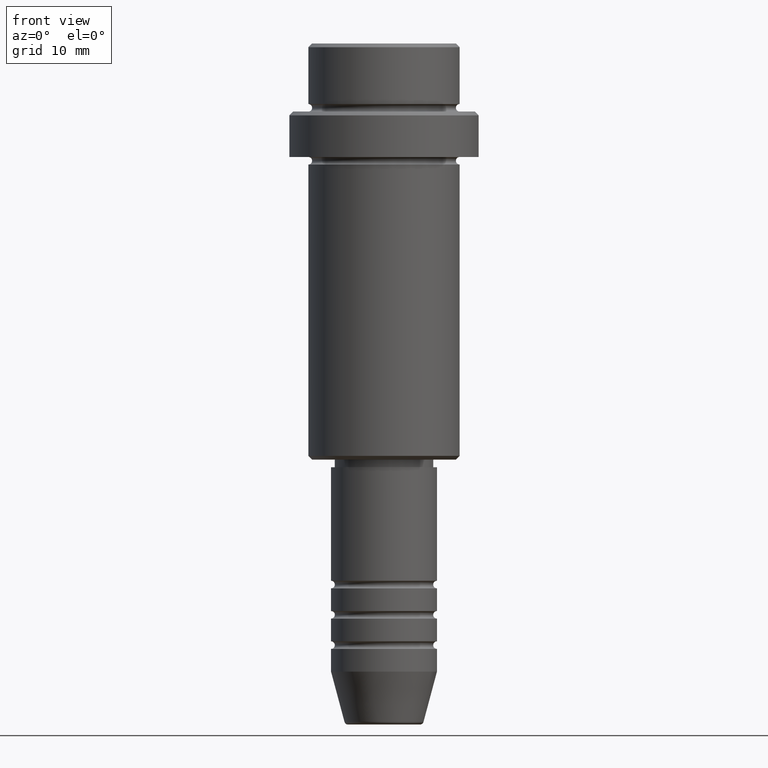
[diagram: clean part render]
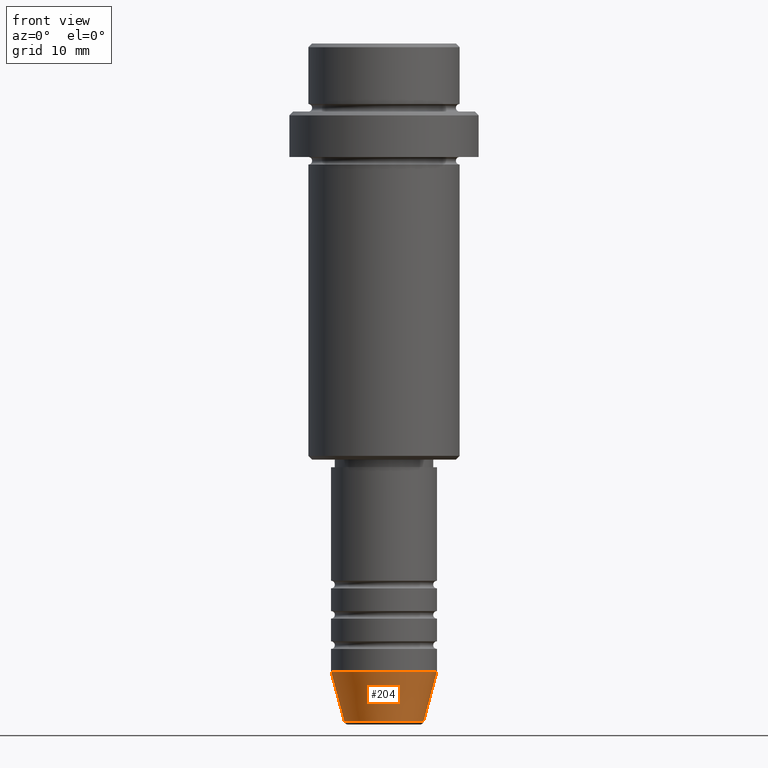
[diagram: same view with one face highlighted and labeled with its STEP entity id]
A machine part, front view. The second image highlights one B-rep face of the part: STEP entity #204.
In plain terms, the highlighted conical surface has half-angle 15 deg.
Its self-contained STEP definition (entity closure, byte-faithful):
#65 = VERTEX_POINT ( 'NONE', #78 ) ;
#78 = CARTESIAN_POINT ( 'NONE',  ( 7.000000000000000000, 0.000000000000000000, -83.00000000000000000 ) ) ;
#89 = CIRCLE ( 'NONE', #841, 5.223655072137193045 ) ;
#128 = EDGE_CURVE ( 'NONE', #454, #888, #1104, .T. ) ;
#181 = CARTESIAN_POINT ( 'NONE',  ( -5.223655072137193045, 7.484830028987060174E-16, -89.62940952255124216 ) ) ;
#197 = CARTESIAN_POINT ( 'NONE',  ( -7.000000000000000000, 8.572527594031473190E-16, -83.00000000000000000 ) ) ;
#204 = ADVANCED_FACE ( 'NONE', ( #343 ), #274, .T. ) ;
#228 = DIRECTION ( 'NONE',  ( 1.000000000000000000, 0.000000000000000000, 0.000000000000000000 ) ) ;
#244 = DIRECTION ( 'NONE',  ( -0.000000000000000000, -0.000000000000000000, 1.000000000000000000 ) ) ;
#271 = CARTESIAN_POINT ( 'NONE',  ( 7.000000000000000000, 0.000000000000000000, -83.00000000000000000 ) ) ;
#274 = CONICAL_SURFACE ( 'NONE', #1338, 7.000000000000000000, 0.2617993877991500740 ) ;
#302 = EDGE_CURVE ( 'NONE', #1225, #65, #913, .T. ) ;
#343 = FACE_OUTER_BOUND ( 'NONE', #1285, .T. ) ;
#409 = CIRCLE ( 'NONE', #599, 7.000000000000000000 ) ;
#452 = CARTESIAN_POINT ( 'NONE',  ( 5.223655072137193045, 0.000000000000000000, -89.62940952255124216 ) ) ;
#454 = VERTEX_POINT ( 'NONE', #181 ) ;
#489 = DIRECTION ( 'NONE',  ( 0.2588190451025213501, 0.000000000000000000, 0.9659258262890680902 ) ) ;
#509 = DIRECTION ( 'NONE',  ( -0.000000000000000000, -0.000000000000000000, 1.000000000000000000 ) ) ;
#545 = CARTESIAN_POINT ( 'NONE',  ( -7.000000000000000000, 8.572527594031473190E-16, -83.00000000000000000 ) ) ;
#563 = DIRECTION ( 'NONE',  ( -0.000000000000000000, -0.000000000000000000, 1.000000000000000000 ) ) ;
#599 = AXIS2_PLACEMENT_3D ( 'NONE', #1041, #509, #1150 ) ;
#661 = ORIENTED_EDGE ( 'NONE', *, *, #698, .T. ) ;
#698 = EDGE_CURVE ( 'NONE', #454, #1225, #89, .T. ) ;
#841 = AXIS2_PLACEMENT_3D ( 'NONE', #1318, #244, #228 ) ;
#854 = ORIENTED_EDGE ( 'NONE', *, *, #1123, .F. ) ;
#880 = VECTOR ( 'NONE', #1289, 1000.000000000000000 ) ;
#888 = VERTEX_POINT ( 'NONE', #197 ) ;
#913 = LINE ( 'NONE', #271, #1251 ) ;
#943 = ORIENTED_EDGE ( 'NONE', *, *, #302, .T. ) ;
#1012 = DIRECTION ( 'NONE',  ( 1.000000000000000000, 0.000000000000000000, 0.000000000000000000 ) ) ;
#1035 = ORIENTED_EDGE ( 'NONE', *, *, #128, .F. ) ;
#1041 = CARTESIAN_POINT ( 'NONE',  ( 0.000000000000000000, 0.000000000000000000, -83.00000000000000000 ) ) ;
#1104 = LINE ( 'NONE', #545, #880 ) ;
#1110 = CARTESIAN_POINT ( 'NONE',  ( 0.000000000000000000, 0.000000000000000000, -83.00000000000000000 ) ) ;
#1123 = EDGE_CURVE ( 'NONE', #888, #65, #409, .T. ) ;
#1150 = DIRECTION ( 'NONE',  ( 1.000000000000000000, 0.000000000000000000, 0.000000000000000000 ) ) ;
#1225 = VERTEX_POINT ( 'NONE', #452 ) ;
#1251 = VECTOR ( 'NONE', #489, 1000.000000000000000 ) ;
#1285 = EDGE_LOOP ( 'NONE', ( #1035, #661, #943, #854 ) ) ;
#1289 = DIRECTION ( 'NONE',  ( -0.2588190451025213501, 3.169619151431772337E-17, 0.9659258262890680902 ) ) ;
#1318 = CARTESIAN_POINT ( 'NONE',  ( 0.000000000000000000, 0.000000000000000000, -89.62940952255124216 ) ) ;
#1338 = AXIS2_PLACEMENT_3D ( 'NONE', #1110, #563, #1012 ) ;